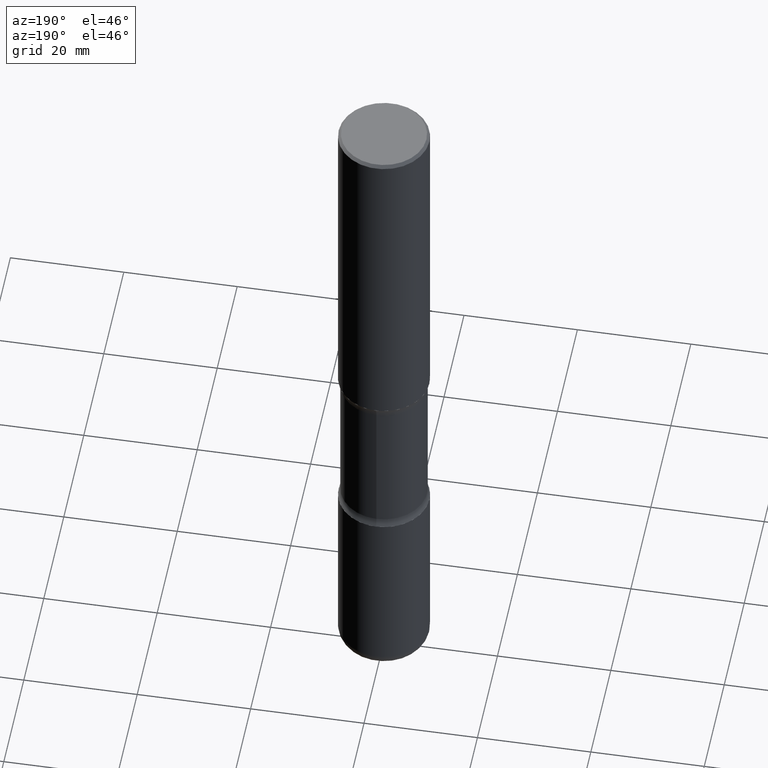
[diagram: clean part render]
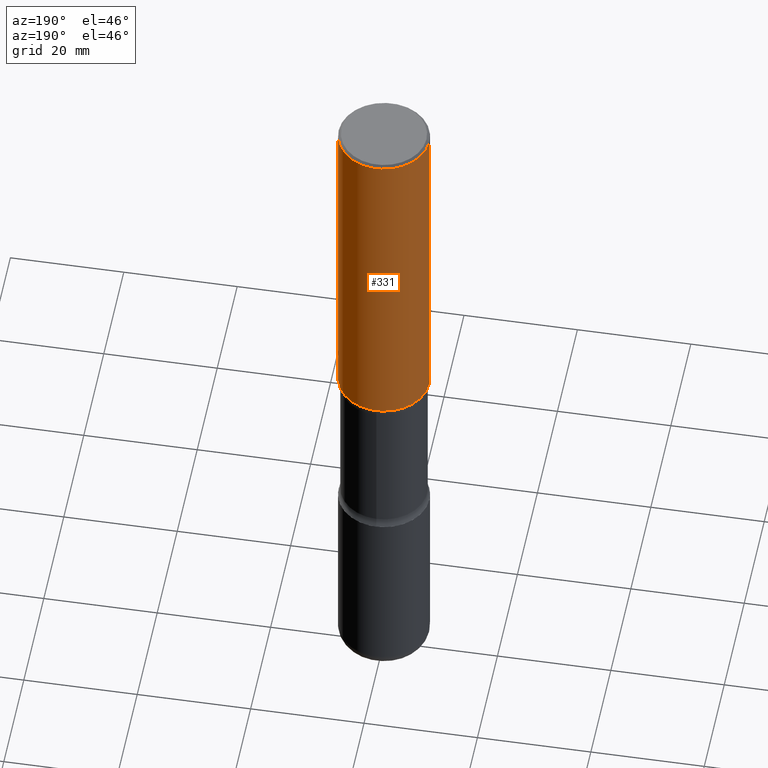
[diagram: same view with one face highlighted and labeled with its STEP entity id]
A machine part, auxiliary view. The second image highlights one B-rep face of the part: STEP entity #331.
In plain terms, the highlighted cylindrical surface (partial cylindrical patch) has radius 7.9997 mm, axis along (-0, 0, 1).
Its self-contained STEP definition (entity closure, byte-faithful):
#9 = CARTESIAN_POINT ( 'NONE',  ( 0.3149500000000000077, -2.199284095337289871E-15, 1.535751875536930130E-29 ) ) ;
#12 = DIRECTION ( 'NONE',  ( -2.445468806185136877E-29, 3.491481338843145188E-15, 1.000000000000000000 ) ) ;
#39 = AXIS2_PLACEMENT_3D ( 'NONE', #465, #428, #463 ) ;
#74 = EDGE_CURVE ( 'NONE', #79, #243, #306, .T. ) ;
#78 = DIRECTION ( 'NONE',  ( -2.445468806185136597E-29, 3.491481338843145583E-15, 1.000000000000000000 ) ) ;
#79 = VERTEX_POINT ( 'NONE', #186 ) ;
#95 = EDGE_LOOP ( 'NONE', ( #361, #256, #552, #503 ) ) ;
#127 = DIRECTION ( 'NONE',  ( 1.000000000000000000, -6.982962677686265922E-15, 0.000000000000000000 ) ) ;
#136 = VERTEX_POINT ( 'NONE', #301 ) ;
#147 = LINE ( 'NONE', #325, #168 ) ;
#158 = CIRCLE ( 'NONE', #491, 0.3149499999999998967 ) ;
#168 = VECTOR ( 'NONE', #196, 39.37007874015748143 ) ;
#186 = CARTESIAN_POINT ( 'NONE',  ( 0.3149500000000001743, -1.058442567870299029E-14, -2.401600000000000623 ) ) ;
#189 = CIRCLE ( 'NONE', #39, 0.3149500000000001743 ) ;
#196 = DIRECTION ( 'NONE',  ( -2.445468806185136877E-29, 3.491481338843145188E-15, 1.000000000000000000 ) ) ;
#230 = EDGE_CURVE ( 'NONE', #346, #136, #147, .T. ) ;
#243 = VERTEX_POINT ( 'NONE', #456 ) ;
#246 = CYLINDRICAL_SURFACE ( 'NONE', #482, 0.3149500000000000077 ) ;
#252 = DIRECTION ( 'NONE',  ( 1.000000000000000000, -6.982962677686266711E-15, 4.876176775795936353E-29 ) ) ;
#256 = ORIENTED_EDGE ( 'NONE', *, *, #230, .T. ) ;
#288 = CARTESIAN_POINT ( 'NONE',  ( 0.000000000000000000, 0.000000000000000000, 0.000000000000000000 ) ) ;
#297 = DIRECTION ( 'NONE',  ( -2.445468806185136597E-29, 3.491481338843145583E-15, 1.000000000000000000 ) ) ;
#301 = CARTESIAN_POINT ( 'NONE',  ( -0.3149499999999998967, 2.129454468560425784E-15, -0.02000000000000006981 ) ) ;
#306 = LINE ( 'NONE', #9, #504 ) ;
#325 = CARTESIAN_POINT ( 'NONE',  ( -0.3149500000000000077, 2.237854346276435590E-15, -1.549218606675782676E-29 ) ) ;
#328 = FACE_OUTER_BOUND ( 'NONE', #95, .T. ) ;
#331 = ADVANCED_FACE ( 'NONE', ( #328 ), #246, .T. ) ;
#346 = VERTEX_POINT ( 'NONE', #470 ) ;
#350 = EDGE_CURVE ( 'NONE', #79, #346, #189, .T. ) ;
#361 = ORIENTED_EDGE ( 'NONE', *, *, #350, .T. ) ;
#374 = EDGE_CURVE ( 'NONE', #243, #136, #158, .T. ) ;
#428 = DIRECTION ( 'NONE',  ( -2.445468806185136597E-29, 3.491481338843145583E-15, 1.000000000000000000 ) ) ;
#456 = CARTESIAN_POINT ( 'NONE',  ( 0.3149499999999998967, -2.230543471175006266E-15, -0.02000000000000006981 ) ) ;
#463 = DIRECTION ( 'NONE',  ( 1.000000000000000000, -6.982962677686265922E-15, 0.000000000000000000 ) ) ;
#465 = CARTESIAN_POINT ( 'NONE',  ( 5.873037884934225470E-29, -8.385141583365698841E-15, -2.401600000000000623 ) ) ;
#470 = CARTESIAN_POINT ( 'NONE',  ( -0.3149500000000001743, -1.989631258794842718E-15, -2.401600000000000623 ) ) ;
#482 = AXIS2_PLACEMENT_3D ( 'NONE', #288, #78, #252 ) ;
#491 = AXIS2_PLACEMENT_3D ( 'NONE', #556, #297, #127 ) ;
#503 = ORIENTED_EDGE ( 'NONE', *, *, #74, .F. ) ;
#504 = VECTOR ( 'NONE', #12, 39.37007874015748143 ) ;
#552 = ORIENTED_EDGE ( 'NONE', *, *, #374, .F. ) ;
#556 = CARTESIAN_POINT ( 'NONE',  ( 4.890937612370289799E-31, -6.982962677686315028E-17, -0.02000000000000006981 ) ) ;